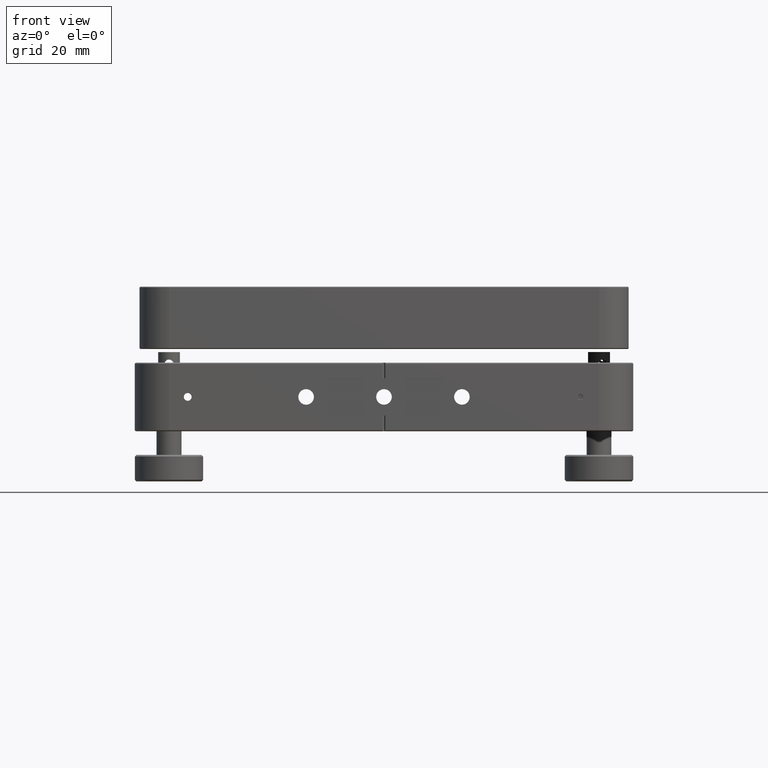
[diagram: clean part render]
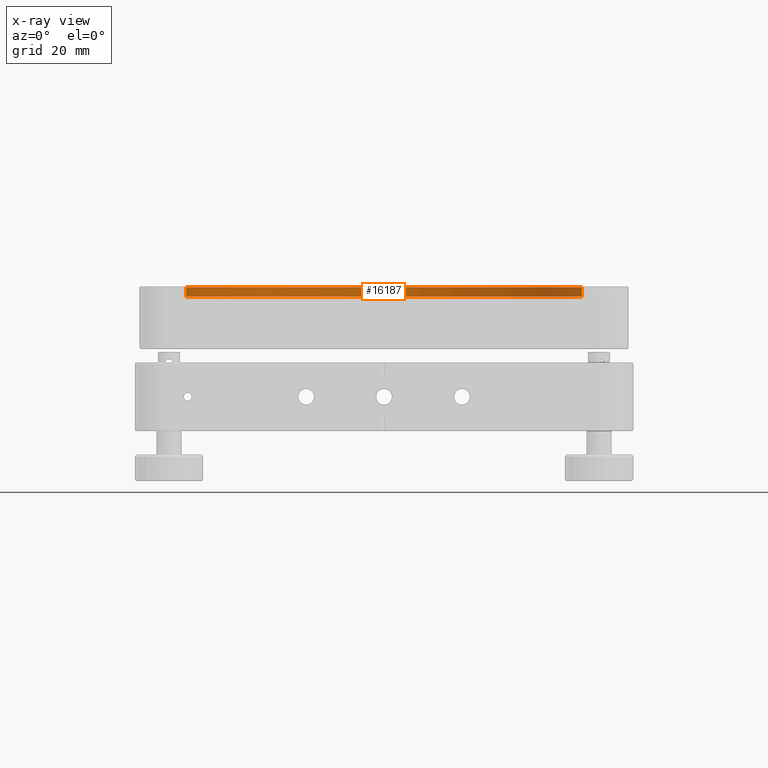
[diagram: x-ray — body ghosted, one internal face saturated and labeled with its STEP entity id]
A machine part, front view, then the same camera in x-ray: the body is ghosted and one INTERNAL B-rep face — a face not visible from any outside direction — is saturated and labeled: STEP entity #16187.
In plain terms, the highlighted cylindrical surface (partial cylindrical patch) has radius 63.5 mm, axis along (0, 0, 1).
Its self-contained STEP definition (entity closure, byte-faithful):
#56 = EDGE_CURVE ( 'NONE', #3578, #1915, #11706, .T. ) ;
#74 = CARTESIAN_POINT ( 'NONE',  ( 63.49716529105845098, 0.5999999999999445777, 35.14949493661173818 ) ) ;
#183 = ORIENTED_EDGE ( 'NONE', *, *, #9266, .F. ) ;
#433 = VERTEX_POINT ( 'NONE', #16507 ) ;
#619 = CARTESIAN_POINT ( 'NONE',  ( -2.775554640409769400E-14, -5.551115123125781440E-14, 34.49949493661168276 ) ) ;
#644 = DIRECTION ( 'NONE',  ( 1.000000000000000000, 0.000000000000000000, 0.000000000000000000 ) ) ;
#723 = ORIENTED_EDGE ( 'NONE', *, *, #11663, .T. ) ;
#784 = VERTEX_POINT ( 'NONE', #2827 ) ;
#893 = DIRECTION ( 'NONE',  ( 0.000000000000000000, 0.000000000000000000, 1.000000000000000000 ) ) ;
#1256 = CARTESIAN_POINT ( 'NONE',  ( -63.49716529105850782, 0.5999999999999445777, 34.49949493661168276 ) ) ;
#1487 = VECTOR ( 'NONE', #893, 1000.000000000000000 ) ;
#1727 = ORIENTED_EDGE ( 'NONE', *, *, #16652, .T. ) ;
#1915 = VERTEX_POINT ( 'NONE', #13542 ) ;
#1926 = EDGE_CURVE ( 'NONE', #9986, #5599, #8461, .T. ) ;
#2197 = CARTESIAN_POINT ( 'NONE',  ( 63.49999999999997158, -5.551115123125781440E-14, 31.89949493661167779 ) ) ;
#2648 = FACE_OUTER_BOUND ( 'NONE', #14622, .T. ) ;
#2827 = CARTESIAN_POINT ( 'NONE',  ( 63.49999999999997158, -5.551115123125781440E-14, 32.14949493661167423 ) ) ;
#2832 = DIRECTION ( 'NONE',  ( -0.000000000000000000, -0.000000000000000000, 1.000000000000000000 ) ) ;
#2982 = AXIS2_PLACEMENT_3D ( 'NONE', #14480, #17004, #11617 ) ;
#3578 = VERTEX_POINT ( 'NONE', #3948 ) ;
#3632 = DIRECTION ( 'NONE',  ( 0.000000000000000000, 0.000000000000000000, 1.000000000000000000 ) ) ;
#3948 = CARTESIAN_POINT ( 'NONE',  ( 63.49716529105845098, 0.5999999999999445777, 34.49949493661168276 ) ) ;
#4218 = DIRECTION ( 'NONE',  ( -0.000000000000000000, -0.000000000000000000, -1.000000000000000000 ) ) ;
#4297 = LINE ( 'NONE', #7063, #16784 ) ;
#5599 = VERTEX_POINT ( 'NONE', #1256 ) ;
#5781 = ORIENTED_EDGE ( 'NONE', *, *, #13241, .T. ) ;
#6232 = CARTESIAN_POINT ( 'NONE',  ( -63.50000000000002842, -4.773464405667211987E-14, 31.89949493661167779 ) ) ;
#6307 = VERTEX_POINT ( 'NONE', #74 ) ;
#6586 = ORIENTED_EDGE ( 'NONE', *, *, #15795, .T. ) ;
#7063 = CARTESIAN_POINT ( 'NONE',  ( 63.49716529105845098, 0.5999999999999445777, 31.89949493661167779 ) ) ;
#7583 = CYLINDRICAL_SURFACE ( 'NONE', #2982, 63.50000000000000000 ) ;
#7677 = CIRCLE ( 'NONE', #14834, 63.50000000000000000 ) ;
#7751 = AXIS2_PLACEMENT_3D ( 'NONE', #619, #8832, #16367 ) ;
#8412 = AXIS2_PLACEMENT_3D ( 'NONE', #16872, #12953, #13212 ) ;
#8461 = LINE ( 'NONE', #13456, #11459 ) ;
#8611 = CARTESIAN_POINT ( 'NONE',  ( -2.775554640409769400E-14, -5.551115123125781440E-14, 35.14949493661173818 ) ) ;
#8832 = DIRECTION ( 'NONE',  ( 0.000000000000000000, -0.000000000000000000, -1.000000000000000000 ) ) ;
#9266 = EDGE_CURVE ( 'NONE', #784, #1915, #14033, .T. ) ;
#9556 = DIRECTION ( 'NONE',  ( 0.000000000000000000, 0.000000000000000000, 1.000000000000000000 ) ) ;
#9585 = CIRCLE ( 'NONE', #12615, 63.50000000000000000 ) ;
#9724 = DIRECTION ( 'NONE',  ( 0.000000000000000000, 0.000000000000000000, -1.000000000000000000 ) ) ;
#9986 = VERTEX_POINT ( 'NONE', #11836 ) ;
#11369 = ORIENTED_EDGE ( 'NONE', *, *, #16405, .F. ) ;
#11459 = VECTOR ( 'NONE', #4218, 1000.000000000000000 ) ;
#11560 = LINE ( 'NONE', #6232, #14447 ) ;
#11617 = DIRECTION ( 'NONE',  ( 1.000000000000000000, 0.000000000000000000, 0.000000000000000000 ) ) ;
#11663 = EDGE_CURVE ( 'NONE', #433, #12505, #11560, .T. ) ;
#11706 = CIRCLE ( 'NONE', #8412, 63.50000000000000000 ) ;
#11836 = CARTESIAN_POINT ( 'NONE',  ( -63.49716529105850782, 0.5999999999999445777, 35.14949493661173818 ) ) ;
#12298 = ORIENTED_EDGE ( 'NONE', *, *, #1926, .F. ) ;
#12505 = VERTEX_POINT ( 'NONE', #16066 ) ;
#12615 = AXIS2_PLACEMENT_3D ( 'NONE', #14666, #2832, #16071 ) ;
#12953 = DIRECTION ( 'NONE',  ( 0.000000000000000000, -0.000000000000000000, -1.000000000000000000 ) ) ;
#13212 = DIRECTION ( 'NONE',  ( 1.000000000000000000, -8.082423619271139614E-14, 0.000000000000000000 ) ) ;
#13241 = EDGE_CURVE ( 'NONE', #12505, #5599, #14084, .T. ) ;
#13456 = CARTESIAN_POINT ( 'NONE',  ( -63.49716529105850782, 0.5999999999999445777, 31.89949493661167779 ) ) ;
#13542 = CARTESIAN_POINT ( 'NONE',  ( 63.49999999999997158, -5.551115123125781440E-14, 34.49949493661168276 ) ) ;
#14033 = LINE ( 'NONE', #2197, #1487 ) ;
#14084 = CIRCLE ( 'NONE', #7751, 63.50000000000000000 ) ;
#14447 = VECTOR ( 'NONE', #3632, 1000.000000000000000 ) ;
#14480 = CARTESIAN_POINT ( 'NONE',  ( -2.775554640409769400E-14, -5.551115123125781440E-14, 31.89949493661167779 ) ) ;
#14622 = EDGE_LOOP ( 'NONE', ( #6586, #723, #5781, #12298, #1727, #11369, #16870, #183 ) ) ;
#14666 = CARTESIAN_POINT ( 'NONE',  ( -2.775554640409769400E-14, -5.551115123125781440E-14, 32.14949493661167423 ) ) ;
#14834 = AXIS2_PLACEMENT_3D ( 'NONE', #8611, #9724, #644 ) ;
#15795 = EDGE_CURVE ( 'NONE', #784, #433, #9585, .T. ) ;
#16066 = CARTESIAN_POINT ( 'NONE',  ( -63.50000000000002842, -4.773464405667211987E-14, 34.49949493661168276 ) ) ;
#16071 = DIRECTION ( 'NONE',  ( 1.000000000000000000, 0.000000000000000000, 0.000000000000000000 ) ) ;
#16187 = ADVANCED_FACE ( 'NONE', ( #2648 ), #7583, .T. ) ;
#16367 = DIRECTION ( 'NONE',  ( 1.000000000000000000, 0.000000000000000000, 0.000000000000000000 ) ) ;
#16405 = EDGE_CURVE ( 'NONE', #3578, #6307, #4297, .T. ) ;
#16507 = CARTESIAN_POINT ( 'NONE',  ( -63.50000000000002842, -4.773464405667211987E-14, 32.14949493661167423 ) ) ;
#16652 = EDGE_CURVE ( 'NONE', #9986, #6307, #7677, .T. ) ;
#16784 = VECTOR ( 'NONE', #9556, 1000.000000000000000 ) ;
#16870 = ORIENTED_EDGE ( 'NONE', *, *, #56, .T. ) ;
#16872 = CARTESIAN_POINT ( 'NONE',  ( -2.775554640409769400E-14, -5.551115123125781440E-14, 34.49949493661168276 ) ) ;
#17004 = DIRECTION ( 'NONE',  ( 0.000000000000000000, 0.000000000000000000, 1.000000000000000000 ) ) ;